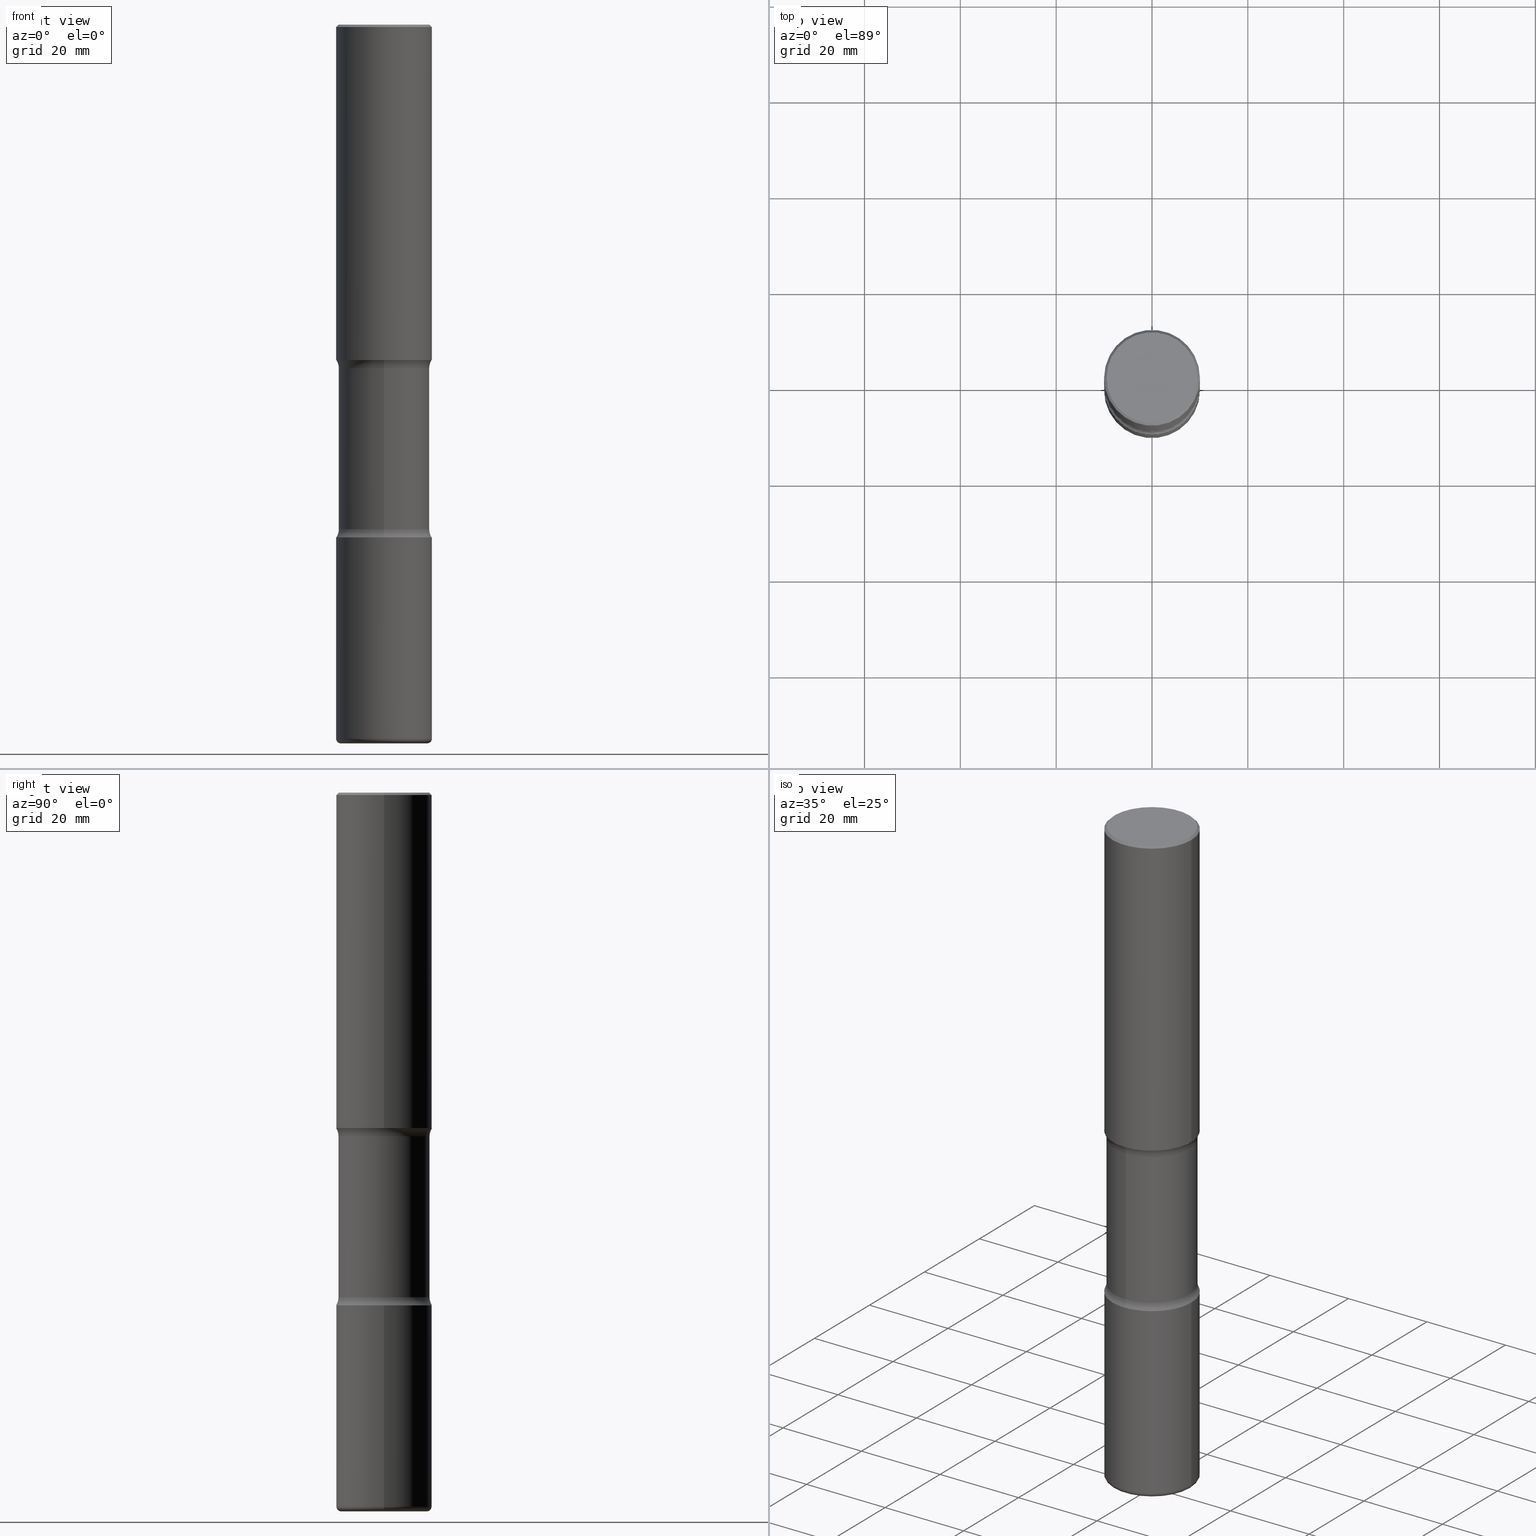
[diagram: canonical four-view strip — front | top / right | iso, engineering-drawing reading convention]
A machine part, canonical four-view strip (front | top / right | iso — engineering-drawing reading convention). The complete STEP part file that produces these views, byte-faithful:
ISO-10303-21;
HEADER;
FILE_DESCRIPTION (( 'STEP AP203' ),
    '1' );
FILE_NAME ('47741.STEP',
    '2024-03-02T08:17:39',
    ( '' ),
    ( '' ),
    'SwSTEP 2.0',
    'SolidWorks 2023',
    '' );
FILE_SCHEMA (( 'CONFIG_CONTROL_DESIGN' ));
ENDSEC;

DATA;
#1 = ADVANCED_FACE ( 'NONE', ( #463 ), #70, .F. ) ;
#2 = DIRECTION ( 'NONE',  ( 1.000000000000000000, -6.860497997771530774E-15, 4.841747577276637457E-29 ) ) ;
#3 = CARTESIAN_POINT ( 'NONE',  ( 0.000000000000000000, 0.000000000000000000, 0.000000000000000000 ) ) ;
#4 = COORDINATED_UNIVERSAL_TIME_OFFSET ( 5, 0, .BEHIND. ) ;
#5 = VECTOR ( 'NONE', #74, 39.37007874015748143 ) ;
#6 = SECURITY_CLASSIFICATION ( '', '', #534 ) ;
#7 = CARTESIAN_POINT ( 'NONE',  ( 0.3937000000000002720, -1.745740669421571411E-14, -4.212599999999998346 ) ) ;
#8 = CARTESIAN_POINT ( 'NONE',  ( 6.829029461346524548E-29, -9.964976017815853586E-15, -2.823256588393414646 ) ) ;
#9 = COORDINATED_UNIVERSAL_TIME_OFFSET ( 5, 0, .BEHIND. ) ;
#10 = DIRECTION ( 'NONE',  ( -2.445468806185136597E-29, 3.491481338843145583E-15, 1.000000000000000000 ) ) ;
#11 = PERSON_AND_ORGANIZATION_ROLE ( 'creator' ) ;
#12 = EDGE_CURVE ( 'NONE', #460, #144, #556, .T. ) ;
#13 = VERTEX_POINT ( 'NONE', #344 ) ;
#14 = CIRCLE ( 'NONE', #49, 0.1249999999999998335 ) ;
#15 = CIRCLE ( 'NONE', #188, 0.3740000000000001656 ) ;
#16 = PERSON_AND_ORGANIZATION ( #286, #339 ) ;
#17 = ADVANCED_FACE ( 'NONE', ( #165 ), #265, .F. ) ;
#18 = EDGE_CURVE ( 'NONE', #371, #462, #119, .T. ) ;
#19 = VERTEX_POINT ( 'NONE', #308 ) ;
#20 = ADVANCED_FACE ( 'NONE', ( #389 ), #22, .T. ) ;
#21 = ORIENTED_EDGE ( 'NONE', *, *, #18, .T. ) ;
#22 = TOROIDAL_SURFACE ( 'NONE', #330, 0.3543000000000003924, 0.03940000000000026814 ) ;
#23 = CC_DESIGN_APPROVAL ( #516, ( #6 ) ) ;
#24 = VERTEX_POINT ( 'NONE', #385 ) ;
#25 = CYLINDRICAL_SURFACE ( 'NONE', #510, 0.3740000000000001656 ) ;
#26 = ORIENTED_EDGE ( 'NONE', *, *, #76, .T. ) ;
#27 = ORIENTED_EDGE ( 'NONE', *, *, #12, .F. ) ;
#28 = EDGE_CURVE ( 'NONE', #371, #24, #262, .T. ) ;
#29 = CIRCLE ( 'NONE', #177, 0.3936999999999999389 ) ;
#30 = AXIS2_PLACEMENT_3D ( 'NONE', #277, #53, #326 ) ;
#31 = ORIENTED_EDGE ( 'NONE', *, *, #370, .T. ) ;
#32 = DIRECTION ( 'NONE',  ( -2.499563752616943430E-29, 3.414014296659653741E-15, 1.000000000000000000 ) ) ;
#33 = APPROVAL ( #131, 'UNSPECIFIED' ) ;
#34 = MANIFOLD_SOLID_BREP ( 'Body-Move/Copy2[4]', #247 ) ;
#35 = DIRECTION ( 'NONE',  ( 6.982962677686266711E-15, 1.000000000000000000, -2.921762560068729411E-15 ) ) ;
#36 = EDGE_CURVE ( 'NONE', #333, #292, #145, .T. ) ;
#37 = DIRECTION ( 'NONE',  ( 2.499563752616943710E-29, -3.414014296659653741E-15, -1.000000000000000000 ) ) ;
#38 = CARTESIAN_POINT ( 'NONE',  ( 6.660667374498401538E-29, -9.735019662066511300E-15, -2.755899999999998240 ) ) ;
#39 = CC_DESIGN_DATE_AND_TIME_ASSIGNMENT ( #360, #98, ( #285 ) ) ;
#40 = CIRCLE ( 'NONE', #274, 0.3740000000000001656 ) ;
#41 = ORIENTED_EDGE ( 'NONE', *, *, #361, .T. ) ;
#42 = CIRCLE ( 'NONE', #426, 0.3543000000000003924 ) ;
#43 = FACE_OUTER_BOUND ( 'NONE', #456, .T. ) ;
#44 = DIRECTION ( 'NONE',  ( 6.982962677686266711E-15, 1.000000000000000000, -2.921762560068729411E-15 ) ) ;
#45 = DIRECTION ( 'NONE',  ( 1.000000000000000000, -6.982962677686265133E-15, 0.000000000000000000 ) ) ;
#46 = CARTESIAN_POINT ( 'NONE',  ( 0.3543000000000003924, -2.309300672324243991E-14, -5.905499999999999972 ) ) ;
#47 = DIRECTION ( 'NONE',  ( 1.000000000000000000, -6.982962677686266711E-15, 4.876212485538976239E-29 ) ) ;
#48 = CARTESIAN_POINT ( 'NONE',  ( 0.000000000000000000, 0.000000000000000000, 0.000000000000000000 ) ) ;
#49 = AXIS2_PLACEMENT_3D ( 'NONE', #96, #273, #140 ) ;
#50 = CC_DESIGN_APPROVAL ( #105, ( #240 ) ) ;
#51 = DIRECTION ( 'NONE',  ( 2.499563752616943710E-29, -3.414014296659653741E-15, -1.000000000000000000 ) ) ;
#52 = COORDINATED_UNIVERSAL_TIME_OFFSET ( 5, 0, .BEHIND. ) ;
#53 = DIRECTION ( 'NONE',  ( -1.000000000000000000, 6.982962677686265922E-15, -4.883557194083112340E-29 ) ) ;
#54 = EDGE_CURVE ( 'NONE', #19, #99, #216, .T. ) ;
#55 = CARTESIAN_POINT ( 'NONE',  ( 2.749192406205151847E-15, 0.3936999999999906685, -2.755899999999999572 ) ) ;
#56 = APPROVAL_ROLE ( '' ) ;
#57 = DIRECTION ( 'NONE',  ( 1.000000000000000000, -6.982962677686265922E-15, 4.876176775795935793E-29 ) ) ;
#58 = EDGE_LOOP ( 'NONE', ( #374, #280, #250, #342 ) ) ;
#59 = CIRCLE ( 'NONE', #126, 0.3937000000000002720 ) ;
#60 = LOCAL_TIME ( 3, 17, 39.00000000000000000, #357 ) ;
#61 = ORIENTED_EDGE ( 'NONE', *, *, #200, .T. ) ;
#62 = EDGE_CURVE ( 'NONE', #157, #24, #226, .T. ) ;
#63 = ADVANCED_FACE ( 'NONE', ( #444 ), #486, .F. ) ;
#64 = ORIENTED_EDGE ( 'NONE', *, *, #174, .T. ) ;
#65 = AXIS2_PLACEMENT_3D ( 'NONE', #130, #10, #45 ) ;
#66 = ORIENTED_EDGE ( 'NONE', *, *, #425, .T. ) ;
#67 = ORIENTED_EDGE ( 'NONE', *, *, #54, .T. ) ;
#68 = ORIENTED_EDGE ( 'NONE', *, *, #442, .F. ) ;
#69 = CC_DESIGN_PERSON_AND_ORGANIZATION_ASSIGNMENT ( #275, #403, ( #285 ) ) ;
#70 = PLANE ( 'NONE',  #111 ) ;
#71 = AXIS2_PLACEMENT_3D ( 'NONE', #258, #224, #87 ) ;
#72 = ORIENTED_EDGE ( 'NONE', *, *, #134, .T. ) ;
#73 = DIRECTION ( 'NONE',  ( 1.000000000000000000, -6.982962677686266711E-15, 4.876176775795935793E-29 ) ) ;
#74 = DIRECTION ( 'NONE',  ( -2.445468806185136877E-29, 3.491481338843145188E-15, 1.000000000000000000 ) ) ;
#75 = DIRECTION ( 'NONE',  ( 6.982962677686265922E-15, 1.000000000000000000, -3.414014296659653741E-15 ) ) ;
#76 = EDGE_CURVE ( 'NONE', #421, #144, #14, .T. ) ;
#77 = FACE_OUTER_BOUND ( 'NONE', #149, .T. ) ;
#78 = DIRECTION ( 'NONE',  ( 1.000000000000000000, -6.982962677686265133E-15, 0.000000000000000000 ) ) ;
#79 = CARTESIAN_POINT ( 'NONE',  ( 1.723044131305019458E-29, -3.883280511437256617E-14, -5.905499999999998195 ) ) ;
#80 =( LENGTH_UNIT ( ) NAMED_UNIT ( * ) SI_UNIT ( $, .METRE. ) );
#81 = CARTESIAN_POINT ( 'NONE',  ( 1.434536456396262699E-28, -2.048137868178777275E-14, -5.866099999999998538 ) ) ;
#82 = CIRCLE ( 'NONE', #509, 0.1249999999999999029 ) ;
#83 =( NAMED_UNIT ( * ) SI_UNIT ( $, .STERADIAN. ) SOLID_ANGLE_UNIT ( ) );
#84 = AXIS2_PLACEMENT_3D ( 'NONE', #375, #150, #73 ) ;
#85 = DIRECTION ( 'NONE',  ( -1.000000000000000000, 6.982962677686266711E-15, 0.000000000000000000 ) ) ;
#86 = CARTESIAN_POINT ( 'NONE',  ( 1.013341980608738414E-28, -1.447825793226129018E-14, -4.145243411606583273 ) ) ;
#87 = DIRECTION ( 'NONE',  ( 6.982962677686266711E-15, 1.000000000000000000, -2.921762560068729411E-15 ) ) ;
#88 = DIRECTION ( 'NONE',  ( 1.000000000000000000, -6.982962677686265133E-15, 0.000000000000000000 ) ) ;
#89 = PERSON_AND_ORGANIZATION_ROLE ( 'classification_officer' ) ;
#90 = FACE_OUTER_BOUND ( 'NONE', #504, .T. ) ;
#91 = PERSON_AND_ORGANIZATION_ROLE ( 'design_supplier' ) ;
#92 = ORIENTED_EDGE ( 'NONE', *, *, #76, .F. ) ;
#93 = CIRCLE ( 'NONE', #414, 0.1249999999999998335 ) ;
#94 = EDGE_CURVE ( 'NONE', #549, #421, #238, .T. ) ;
#95 = DIRECTION ( 'NONE',  ( 1.000000000000000000, -6.982962677686265133E-15, 0.000000000000000000 ) ) ;
#96 = CARTESIAN_POINT ( 'NONE',  ( 3.484498376165515577E-15, 0.4989999999999901736, -2.823256588393415534 ) ) ;
#97 = CARTESIAN_POINT ( 'NONE',  ( 6.660667374498401538E-29, -9.735019662066511300E-15, -2.755899999999998240 ) ) ;
#98 = DATE_TIME_ROLE ( 'creation_date' ) ;
#99 = VERTEX_POINT ( 'NONE', #522 ) ;
#100 = EDGE_CURVE ( 'NONE', #292, #333, #204, .T. ) ;
#101 = DIRECTION ( 'NONE',  ( 6.982962677686265922E-15, 1.000000000000000000, -3.414014296659653741E-15 ) ) ;
#102 = CALENDAR_DATE ( 2024, 2, 3 ) ;
#103 = APPROVAL_PERSON_ORGANIZATION ( #16, #33, #56 ) ;
#104 = ORIENTED_EDGE ( 'NONE', *, *, #36, .T. ) ;
#105 = APPROVAL ( #537, 'UNSPECIFIED' ) ;
#106 = EDGE_LOOP ( 'NONE', ( #547, #368, #415, #496 ) ) ;
#107 = CARTESIAN_POINT ( 'NONE',  ( -2.565826251166408560E-15, -0.3740000000000206493, -5.905499999999997307 ) ) ;
#108 = ORIENTED_EDGE ( 'NONE', *, *, #203, .T. ) ;
#109 = ORIENTED_EDGE ( 'NONE', *, *, #495, .F. ) ;
#110 = ADVANCED_FACE ( 'NONE', ( #480 ), #181, .F. ) ;
#111 = AXIS2_PLACEMENT_3D ( 'NONE', #423, #159, #212 ) ;
#112 = AXIS2_PLACEMENT_3D ( 'NONE', #395, #161, #346 ) ;
#113 = AXIS2_PLACEMENT_3D ( 'NONE', #424, #32, #345 ) ;
#114 = ORIENTED_EDGE ( 'NONE', *, *, #301, .F. ) ;
#115 = EDGE_LOOP ( 'NONE', ( #331, #41, #253, #284 ) ) ;
#116 = VERTEX_POINT ( 'NONE', #235 ) ;
#117 = CARTESIAN_POINT ( 'NONE',  ( 0.000000000000000000, 0.000000000000000000, 0.000000000000000000 ) ) ;
#118 = CARTESIAN_POINT ( 'NONE',  ( 2.611628041454766160E-15, 0.3739999999999856772, -4.145243411606584161 ) ) ;
#119 = CIRCLE ( 'NONE', #196, 0.3937000000000002164 ) ;
#120 = DIRECTION ( 'NONE',  ( 1.000000000000000000, -6.982962677686266711E-15, 4.883557194083112340E-29 ) ) ;
#121 = AXIS2_PLACEMENT_3D ( 'NONE', #560, #394, #470 ) ;
#122 = FACE_OUTER_BOUND ( 'NONE', #202, .T. ) ;
#123 = PLANE ( 'NONE',  #112 ) ;
#124 = CARTESIAN_POINT ( 'NONE',  ( -0.3937000000000004385, -1.768397193110025560E-14, -5.866099999999998538 ) ) ;
#125 = LINE ( 'NONE', #468, #254 ) ;
#126 = AXIS2_PLACEMENT_3D ( 'NONE', #261, #559, #343 ) ;
#127 = DIRECTION ( 'NONE',  ( 2.499563752616943710E-29, -3.414014296659653741E-15, -1.000000000000000000 ) ) ;
#128 = TOROIDAL_SURFACE ( 'NONE', #548, 0.4990000000000002212, 0.1249999999999998751 ) ;
#129 = CARTESIAN_POINT ( 'NONE',  ( 1.013341980608738414E-28, -1.447825793226129018E-14, -4.145243411606583273 ) ) ;
#130 = CARTESIAN_POINT ( 'NONE',  ( 6.739467482965614869E-29, -9.622173421717819657E-15, -2.755899999999998240 ) ) ;
#131 = APPROVAL_STATUS ( 'not_yet_approved' ) ;
#132 = DIRECTION ( 'NONE',  ( 1.000000000000000000, -6.982962677686265133E-15, 0.000000000000000000 ) ) ;
#133 = DIRECTION ( 'NONE',  ( 1.000000000000000000, 0.000000000000000000, 0.000000000000000000 ) ) ;
#134 = EDGE_CURVE ( 'NONE', #252, #201, #372, .T. ) ;
#135 = CARTESIAN_POINT ( 'NONE',  ( -2.087702828670439639E-46, 2.980686340760894400E-32, 8.537024980200822558E-18 ) ) ;
#136 = COORDINATED_UNIVERSAL_TIME_OFFSET ( 5, 0, .BEHIND. ) ;
#137 = CC_DESIGN_PERSON_AND_ORGANIZATION_ASSIGNMENT ( #449, #11, ( #240 ) ) ;
#138 = CLOSED_SHELL ( 'NONE', ( #488, #20, #420, #377, #158, #1 ) ) ;
#139 = TOROIDAL_SURFACE ( 'NONE', #447, 0.3543000000000003924, 0.03940000000000026814 ) ;
#140 = DIRECTION ( 'NONE',  ( -6.982962677686268288E-15, -1.000000000000000000, 0.000000000000000000 ) ) ;
#141 = CALENDAR_DATE ( 2024, 2, 3 ) ;
#142 = ORIENTED_EDGE ( 'NONE', *, *, #94, .F. ) ;
#143 = CARTESIAN_POINT ( 'NONE',  ( 1.444171603492632270E-28, -2.061894304653819197E-14, -5.905499999999999972 ) ) ;
#144 = VERTEX_POINT ( 'NONE', #55 ) ;
#145 = CIRCLE ( 'NONE', #531, 0.3937000000000002720 ) ;
#146 = EDGE_LOOP ( 'NONE', ( #482, #72, #299, #457 ) ) ;
#147 = VERTEX_POINT ( 'NONE', #402 ) ;
#148 = APPLICATION_CONTEXT ( 'configuration controlled 3d designs of mechanical parts and assemblies' ) ;
#149 = EDGE_LOOP ( 'NONE', ( #336, #66, #187, #538 ) ) ;
#150 = DIRECTION ( 'NONE',  ( -2.445468806185136597E-29, 3.491481338843145583E-15, 1.000000000000000000 ) ) ;
#151 = EDGE_LOOP ( 'NONE', ( #108, #539, #335, #290 ) ) ;
#152 = DIMENSIONAL_EXPONENTS ( 1.000000000000000000, 0.000000000000000000, 0.000000000000000000, 0.000000000000000000, 0.000000000000000000, 0.000000000000000000, 0.000000000000000000 ) ;
#153 = ORIENTED_EDGE ( 'NONE', *, *, #526, .F. ) ;
#154 = CC_DESIGN_PERSON_AND_ORGANIZATION_ASSIGNMENT ( #364, #91, ( #240 ) ) ;
#155 = AXIS2_PLACEMENT_3D ( 'NONE', #282, #179, #101 ) ;
#156 = LOCAL_TIME ( 3, 17, 39.00000000000000000, #136 ) ;
#157 = VERTEX_POINT ( 'NONE', #7 ) ;
#158 = ADVANCED_FACE ( 'NONE', ( #90 ), #184, .T. ) ;
#159 = DIRECTION ( 'NONE',  ( 2.438088387897960049E-29, -3.491481338843145188E-15, -1.000000000000000000 ) ) ;
#160 = CARTESIAN_POINT ( 'NONE',  ( -2.700978061722587749E-15, -0.3937000000000100419, -2.755899999999997352 ) ) ;
#161 = DIRECTION ( 'NONE',  ( 2.438088387897960049E-29, -3.491481338843145188E-15, -1.000000000000000000 ) ) ;
#162 = DIRECTION ( 'NONE',  ( -2.445468806185136597E-29, 3.491481338843145583E-15, 1.000000000000000000 ) ) ;
#163 = DIRECTION ( 'NONE',  ( 1.000000000000000000, -6.982962677686280910E-15, 0.000000000000000000 ) ) ;
#164 = DIRECTION ( 'NONE',  ( 2.499563752616943710E-29, -3.414014296659653741E-15, -1.000000000000000000 ) ) ;
#165 = FACE_OUTER_BOUND ( 'NONE', #464, .T. ) ;
#166 = CIRCLE ( 'NONE', #483, 0.3736999999999999211 ) ;
#167 = CARTESIAN_POINT ( 'NONE',  ( 1.434536456396262699E-28, -2.048137868178777275E-14, -5.866099999999998538 ) ) ;
#168 = APPROVAL_PERSON_ORGANIZATION ( #189, #105, #481 ) ;
#169 = DIRECTION ( 'NONE',  ( 6.982962677686265922E-15, 1.000000000000000000, -3.414014296659653741E-15 ) ) ;
#170 = DIRECTION ( 'NONE',  ( -2.445468806185136877E-29, 3.491481338843145188E-15, 1.000000000000000000 ) ) ;
#171 = CARTESIAN_POINT ( 'NONE',  ( 0.3937000000000004385, -2.323057108799285912E-14, -5.866099999999998538 ) ) ;
#172 = DIRECTION ( 'NONE',  ( -2.445468806185136597E-29, 3.491481338843145583E-15, 1.000000000000000000 ) ) ;
#173 = CARTESIAN_POINT ( 'NONE',  ( -2.633402156444500718E-15, -0.3740000000000146541, -4.145243411606582384 ) ) ;
#174 = EDGE_CURVE ( 'NONE', #147, #298, #354, .T. ) ;
#175 = DIRECTION ( 'NONE',  ( 1.000000000000000000, -6.982962677686266711E-15, 4.883557194083112340E-29 ) ) ;
#176 = DIRECTION ( 'NONE',  ( 1.000000000000000000, -6.982962677686266711E-15, 4.876176775795935793E-29 ) ) ;
#177 = AXIS2_PLACEMENT_3D ( 'NONE', #218, #172, #517 ) ;
#178 = VECTOR ( 'NONE', #334, 39.37007874015748143 ) ;
#179 = DIRECTION ( 'NONE',  ( 2.499563752616943430E-29, -3.414014296659653741E-15, -1.000000000000000000 ) ) ;
#180 = CALENDAR_DATE ( 2024, 2, 3 ) ;
#181 = PLANE ( 'NONE',  #540 ) ;
#182 = APPROVAL_STATUS ( 'not_yet_approved' ) ;
#183 = LINE ( 'NONE', #107, #178 ) ;
#184 = CYLINDRICAL_SURFACE ( 'NONE', #347, 0.3937000000000002164 ) ;
#185 = DATE_AND_TIME ( #487, #60 ) ;
#186 = AXIS2_PLACEMENT_3D ( 'NONE', #319, #327, #525 ) ;
#187 = ORIENTED_EDGE ( 'NONE', *, *, #400, .F. ) ;
#188 = AXIS2_PLACEMENT_3D ( 'NONE', #86, #507, #260 ) ;
#189 = PERSON_AND_ORGANIZATION ( #286, #339 ) ;
#190 = EDGE_CURVE ( 'NONE', #292, #544, #82, .T. ) ;
#191 = DIRECTION ( 'NONE',  ( 2.438088387897960049E-29, -3.491481338843145188E-15, -1.000000000000000000 ) ) ;
#192 = ORIENTED_EDGE ( 'NONE', *, *, #94, .T. ) ;
#193 = ADVANCED_FACE ( 'NONE', ( #233 ), #398, .T. ) ;
#194 = ORIENTED_EDGE ( 'NONE', *, *, #12, .T. ) ;
#195 = ORIENTED_EDGE ( 'NONE', *, *, #445, .T. ) ;
#196 = AXIS2_PLACEMENT_3D ( 'NONE', #208, #259, #78 ) ;
#197 = CIRCLE ( 'NONE', #541, 0.03940000000000026814 ) ;
#198 = ORIENTED_EDGE ( 'NONE', *, *, #501, .T. ) ;
#199 = CYLINDRICAL_SURFACE ( 'NONE', #84, 0.3937000000000001054 ) ;
#200 = EDGE_CURVE ( 'NONE', #116, #19, #323, .T. ) ;
#201 = VERTEX_POINT ( 'NONE', #355 ) ;
#202 = EDGE_LOOP ( 'NONE', ( #142, #494, #194, #92 ) ) ;
#203 = EDGE_CURVE ( 'NONE', #462, #371, #296, .T. ) ;
#204 = CIRCLE ( 'NONE', #186, 0.3937000000000002720 ) ;
#205 = CC_DESIGN_SECURITY_CLASSIFICATION ( #6, ( #240 ) ) ;
#206 = ORIENTED_EDGE ( 'NONE', *, *, #313, .T. ) ;
#207 = LENGTH_MEASURE_WITH_UNIT ( LENGTH_MEASURE( 0.02539999999999999897 ), #80 );
#208 = CARTESIAN_POINT ( 'NONE',  ( 1.434536456396262699E-28, -2.048137868178777275E-14, -5.866099999999998538 ) ) ;
#209 = DIRECTION ( 'NONE',  ( -2.445468806185136597E-29, 3.491481338843145583E-15, 1.000000000000000000 ) ) ;
#210 = DIRECTION ( 'NONE',  ( -2.445468806185136597E-29, 3.491481338843145583E-15, 1.000000000000000000 ) ) ;
#211 = DIRECTION ( 'NONE',  ( 6.982962677686265922E-15, 1.000000000000000000, -2.775563112689113540E-15 ) ) ;
#212 = DIRECTION ( 'NONE',  ( -1.000000000000000000, 6.982962677686265922E-15, -4.876176775795935793E-29 ) ) ;
#213 = LINE ( 'NONE', #435, #5 ) ;
#214 = MANIFOLD_SOLID_BREP ( 'Body-Move/Copy2[1]', #138 ) ;
#215 = AXIS2_PLACEMENT_3D ( 'NONE', #97, #418, #211 ) ;
#216 = LINE ( 'NONE', #438, #434 ) ;
#217 = CARTESIAN_POINT ( 'NONE',  ( -0.3543000000000003924, -1.796392576898973579E-14, -5.866099999999998538 ) ) ;
#218 = CARTESIAN_POINT ( 'NONE',  ( 4.890937612370298557E-31, -6.982962677686327354E-17, -0.02000000000000010103 ) ) ;
#219 = DIRECTION ( 'NONE',  ( 6.982962677686265922E-15, 1.000000000000000000, -2.775563112689114723E-15 ) ) ;
#220 = CARTESIAN_POINT ( 'NONE',  ( 0.3543000000000003924, -2.295544235849201754E-14, -5.866099999999998538 ) ) ;
#221 = DIRECTION ( 'NONE',  ( 6.982962677686265922E-15, 1.000000000000000000, -2.775563112689113540E-15 ) ) ;
#222 = DIRECTION ( 'NONE',  ( 1.000000000000000000, -6.860497997771530774E-15, 4.841747577276637457E-29 ) ) ;
#223 = EDGE_CURVE ( 'NONE', #421, #549, #40, .T. ) ;
#224 = DIRECTION ( 'NONE',  ( 2.499563752616943710E-29, -3.414014296659653741E-15, -1.000000000000000000 ) ) ;
#225 = CARTESIAN_POINT ( 'NONE',  ( 6.829029461346524548E-29, -9.964976017815853586E-15, -2.823256588393414646 ) ) ;
#226 = CIRCLE ( 'NONE', #306, 0.3937000000000002720 ) ;
#227 = APPROVAL_DATE_TIME ( #485, #33 ) ;
#228 = AXIS2_PLACEMENT_3D ( 'NONE', #477, #553, #465 ) ;
#229 = CC_DESIGN_PERSON_AND_ORGANIZATION_ASSIGNMENT ( #529, #89, ( #6 ) ) ;
#230 = DIRECTION ( 'NONE',  ( 1.000000000000000000, -6.982962677686269077E-15, 0.000000000000000000 ) ) ;
#231 = PERSON_AND_ORGANIZATION ( #286, #339 ) ;
#232 = MANIFOLD_SOLID_BREP ( 'Body-Move/Copy2[2]', #454 ) ;
#233 = FACE_OUTER_BOUND ( 'NONE', #542, .T. ) ;
#234 = CALENDAR_DATE ( 2024, 2, 3 ) ;
#235 = CARTESIAN_POINT ( 'NONE',  ( 0.3736999999999999211, -2.667287895133367964E-15, 8.537024980219274507E-18 ) ) ;
#236 = SHAPE_DEFINITION_REPRESENTATION ( #289, #382 ) ;
#237 = ADVANCED_FACE ( 'NONE', ( #77 ), #270, .T. ) ;
#238 = CIRCLE ( 'NONE', #392, 0.3740000000000001656 ) ;
#239 = EDGE_LOOP ( 'NONE', ( #109, #358 ) ) ;
#240 = PRODUCT_DEFINITION_FORMATION_WITH_SPECIFIED_SOURCE ( 'ANY', '', #300, .NOT_KNOWN. ) ;
#241 = PRODUCT_RELATED_PRODUCT_CATEGORY ( 'detail', '', ( #300 ) ) ;
#242 = ORIENTED_EDGE ( 'NONE', *, *, #294, .F. ) ;
#243 = DIRECTION ( 'NONE',  ( 2.499563752616943710E-29, -3.414014296659653741E-15, -1.000000000000000000 ) ) ;
#244 = ADVANCED_FACE ( 'NONE', ( #429 ), #436, .T. ) ;
#245 = APPLICATION_CONTEXT ( 'configuration controlled 3d designs of mechanical parts and assemblies' ) ;
#246 = ORIENTED_EDGE ( 'NONE', *, *, #340, .T. ) ;
#247 = CLOSED_SHELL ( 'NONE', ( #237, #489, #536, #473, #63, #497, #17, #428 ) ) ;
#248 = TOROIDAL_SURFACE ( 'NONE', #532, 0.4990000000000000546, 0.1249999999999998612 ) ;
#249 = ADVANCED_FACE ( 'NONE', ( #441 ), #123, .F. ) ;
#250 = ORIENTED_EDGE ( 'NONE', *, *, #203, .F. ) ;
#251 = ORIENTED_EDGE ( 'NONE', *, *, #361, .F. ) ;
#252 = VERTEX_POINT ( 'NONE', #432 ) ;
#253 = ORIENTED_EDGE ( 'NONE', *, *, #353, .T. ) ;
#254 = VECTOR ( 'NONE', #170, 39.37007874015748143 ) ;
#255 = CIRCLE ( 'NONE', #437, 0.3936999999999999389 ) ;
#256 = ORIENTED_EDGE ( 'NONE', *, *, #62, .T. ) ;
#257 = CARTESIAN_POINT ( 'NONE',  ( 4.890937612370298557E-31, -6.982962677686327354E-17, -0.02000000000000010103 ) ) ;
#258 = CARTESIAN_POINT ( 'NONE',  ( 1.453329336974072664E-28, -2.048779909082575425E-14, -5.905499999999998195 ) ) ;
#259 = DIRECTION ( 'NONE',  ( -2.445468806185136597E-29, 3.491481338843145583E-15, 1.000000000000000000 ) ) ;
#260 = DIRECTION ( 'NONE',  ( 6.982962677686266711E-15, 1.000000000000000000, -2.921762560068729411E-15 ) ) ;
#261 = CARTESIAN_POINT ( 'NONE',  ( 1.030178189293550378E-28, -1.470821428801063089E-14, -4.212599999999998346 ) ) ;
#262 = LINE ( 'NONE', #469, #466 ) ;
#263 =( NAMED_UNIT ( * ) PLANE_ANGLE_UNIT ( ) SI_UNIT ( $, .RADIAN. ) );
#264 = LINE ( 'NONE', #391, #312 ) ;
#265 = TOROIDAL_SURFACE ( 'NONE', #408, 0.4990000000000002212, 0.1249999999999998751 ) ;
#266 = AXIS2_PLACEMENT_3D ( 'NONE', #475, #352, #85 ) ;
#267 = CARTESIAN_POINT ( 'NONE',  ( 1.030178189293550378E-28, -1.470821428801063089E-14, -4.212599999999998346 ) ) ;
#268 = APPLICATION_PROTOCOL_DEFINITION ( 'international standard', 'config_control_design', 1994, #148 ) ;
#269 = DIRECTION ( 'NONE',  ( 2.499563752616943710E-29, -3.414014296659653741E-15, -1.000000000000000000 ) ) ;
#270 = CYLINDRICAL_SURFACE ( 'NONE', #71, 0.3740000000000001656 ) ;
#271 = DIRECTION ( 'NONE',  ( 1.000000000000000000, -6.982962677686266711E-15, 4.876176775795935793E-29 ) ) ;
#272 = EDGE_CURVE ( 'NONE', #549, #460, #93, .T. ) ;
#273 = DIRECTION ( 'NONE',  ( -1.000000000000000000, 6.982962677686265922E-15, -4.883557194083112340E-29 ) ) ;
#274 = AXIS2_PLACEMENT_3D ( 'NONE', #225, #397, #35 ) ;
#275 = PERSON_AND_ORGANIZATION ( #286, #339 ) ;
#276 = LOCAL_TIME ( 3, 17, 39.00000000000000000, #4 ) ;
#277 = CARTESIAN_POINT ( 'NONE',  ( 3.484498376165549498E-15, 0.4989999999999857327, -4.145243411606585049 ) ) ;
#278 = CARTESIAN_POINT ( 'NONE',  ( 1.434536456396262699E-28, -2.048137868178777275E-14, -5.866099999999998538 ) ) ;
#279 = DATE_AND_TIME ( #141, #381 ) ;
#280 = ORIENTED_EDGE ( 'NONE', *, *, #442, .T. ) ;
#281 = EDGE_CURVE ( 'NONE', #421, #325, #264, .T. ) ;
#282 = CARTESIAN_POINT ( 'NONE',  ( 6.739467482965614869E-29, -9.622173421717819657E-15, -2.755899999999998240 ) ) ;
#283 = APPROVAL_DATE_TIME ( #405, #516 ) ;
#284 = ORIENTED_EDGE ( 'NONE', *, *, #54, .F. ) ;
#285 = PRODUCT_DEFINITION ( 'UNKNOWN', '', #240, #387 ) ;
#286 = PERSON ( 'UNSPECIFIED', 'UNSPECIFIED', 'UNSPECIFIED', ('UNSPECIFIED'), ('UNSPECIFIED'), ('UNSPECIFIED') ) ;
#287 = AXIS2_PLACEMENT_3D ( 'NONE', #38, #164, #221 ) ;
#288 = DIRECTION ( 'NONE',  ( -1.000000000000000000, 6.982962677686265922E-15, -4.876176775795935793E-29 ) ) ;
#289 = PRODUCT_DEFINITION_SHAPE ( 'NONE', 'NONE',  #285 ) ;
#290 = ORIENTED_EDGE ( 'NONE', *, *, #370, .F. ) ;
#291 = FACE_OUTER_BOUND ( 'NONE', #378, .T. ) ;
#292 = VERTEX_POINT ( 'NONE', #471 ) ;
#293 = DIRECTION ( 'NONE',  ( 6.982962677686266711E-15, 1.000000000000000000, -2.921762560068729411E-15 ) ) ;
#294 = EDGE_CURVE ( 'NONE', #19, #116, #166, .T. ) ;
#295 = ORIENTED_EDGE ( 'NONE', *, *, #272, .F. ) ;
#296 = CIRCLE ( 'NONE', #474, 0.3937000000000002164 ) ;
#297 = CIRCLE ( 'NONE', #30, 0.1249999999999999029 ) ;
#298 = VERTEX_POINT ( 'NONE', #46 ) ;
#299 = ORIENTED_EDGE ( 'NONE', *, *, #301, .T. ) ;
#300 = PRODUCT ( '47741', '47741', '', ( #320 ) ) ;
#301 = EDGE_CURVE ( 'NONE', #201, #13, #310, .T. ) ;
#302 = EDGE_LOOP ( 'NONE', ( #413, #61 ) ) ;
#303 = ORIENTED_EDGE ( 'NONE', *, *, #174, .F. ) ;
#304 = FACE_OUTER_BOUND ( 'NONE', #337, .T. ) ;
#305 = DIRECTION ( 'NONE',  ( 6.860497997771531562E-15, 1.000000000000000000, 0.000000000000000000 ) ) ;
#306 = AXIS2_PLACEMENT_3D ( 'NONE', #448, #363, #230 ) ;
#307 = CARTESIAN_POINT ( 'NONE',  ( 4.890937612370298557E-31, -6.982962677686327354E-17, -0.02000000000000010103 ) ) ;
#308 = CARTESIAN_POINT ( 'NONE',  ( -0.3736999999999999211, 2.644447966039788269E-15, 8.537024980182450727E-18 ) ) ;
#309 = PLANE ( 'NONE',  #113 ) ;
#310 = LINE ( 'NONE', #478, #338 ) ;
#311 = DIRECTION ( 'NONE',  ( -2.445468806185136877E-29, 3.491481338843145188E-15, 1.000000000000000000 ) ) ;
#312 = VECTOR ( 'NONE', #443, 39.37007874015748143 ) ;
#313 = EDGE_CURVE ( 'NONE', #24, #157, #59, .T. ) ;
#314 = CARTESIAN_POINT ( 'NONE',  ( 2.611628041454733028E-15, 0.3739999999999901736, -2.823256588393415534 ) ) ;
#315 = CIRCLE ( 'NONE', #393, 0.3740000000000001656 ) ;
#316 = FACE_OUTER_BOUND ( 'NONE', #151, .T. ) ;
#317 = LINE ( 'NONE', #388, #490 ) ;
#318 = DIRECTION ( 'NONE',  ( -2.445468806185136597E-29, 3.491481338843145583E-15, 1.000000000000000000 ) ) ;
#319 = CARTESIAN_POINT ( 'NONE',  ( 1.030178189293550378E-28, -1.470821428801063089E-14, -4.212599999999998346 ) ) ;
#320 = MECHANICAL_CONTEXT ( 'NONE', #148, 'mechanical' ) ;
#321 = ORIENTED_EDGE ( 'NONE', *, *, #223, .F. ) ;
#322 = DIRECTION ( 'NONE',  ( -2.438088387897960049E-29, 3.491481338843145188E-15, 1.000000000000000000 ) ) ;
#323 = CIRCLE ( 'NONE', #380, 0.3736999999999999211 ) ;
#324 = DIRECTION ( 'NONE',  ( 0.000000000000000000, 0.000000000000000000, 1.000000000000000000 ) ) ;
#325 = VERTEX_POINT ( 'NONE', #118 ) ;
#326 = DIRECTION ( 'NONE',  ( -6.982962677686264344E-15, -1.000000000000000000, 0.000000000000000000 ) ) ;
#327 = DIRECTION ( 'NONE',  ( 2.499563752616943710E-29, -3.414014296659653741E-15, -1.000000000000000000 ) ) ;
#328 = DATE_TIME_ROLE ( 'classification_date' ) ;
#329 = ORIENTED_EDGE ( 'NONE', *, *, #28, .F. ) ;
#330 = AXIS2_PLACEMENT_3D ( 'NONE', #167, #162, #120 ) ;
#331 = ORIENTED_EDGE ( 'NONE', *, *, #200, .F. ) ;
#332 = CC_DESIGN_PERSON_AND_ORGANIZATION_ASSIGNMENT ( #367, #451, ( #300 ) ) ;
#333 = VERTEX_POINT ( 'NONE', #506 ) ;
#334 = DIRECTION ( 'NONE',  ( 2.499563752616943710E-29, -3.414014296659653741E-15, -1.000000000000000000 ) ) ;
#335 = ORIENTED_EDGE ( 'NONE', *, *, #62, .F. ) ;
#336 = ORIENTED_EDGE ( 'NONE', *, *, #223, .T. ) ;
#337 = EDGE_LOOP ( 'NONE', ( #104, #546 ) ) ;
#338 = VECTOR ( 'NONE', #311, 39.37007874015748143 ) ;
#339 = ORGANIZATION ( 'UNSPECIFIED', 'UNSPECIFIED', '' ) ;
#340 = EDGE_CURVE ( 'NONE', #144, #460, #519, .T. ) ;
#341 = ORIENTED_EDGE ( 'NONE', *, *, #411, .F. ) ;
#342 = ORIENTED_EDGE ( 'NONE', *, *, #501, .F. ) ;
#343 = DIRECTION ( 'NONE',  ( 1.000000000000000000, -6.982962677686269077E-15, 0.000000000000000000 ) ) ;
#344 = CARTESIAN_POINT ( 'NONE',  ( 0.3936999999999999389, -2.770807688499514945E-15, -0.02000000000000010103 ) ) ;
#345 = DIRECTION ( 'NONE',  ( -6.982962677686265922E-15, -1.000000000000000000, 3.414014296659653741E-15 ) ) ;
#346 = DIRECTION ( 'NONE',  ( -1.000000000000000000, 6.982962677686265922E-15, -4.876176775795935793E-29 ) ) ;
#347 = AXIS2_PLACEMENT_3D ( 'NONE', #356, #318, #271 ) ;
#348 = AXIS2_PLACEMENT_3D ( 'NONE', #117, #551, #515 ) ;
#349 = CYLINDRICAL_SURFACE ( 'NONE', #348, 0.3937000000000002164 ) ;
#350 = DIRECTION ( 'NONE',  ( 2.499563752616943710E-29, -3.414014296659653741E-15, -1.000000000000000000 ) ) ;
#351 = CARTESIAN_POINT ( 'NONE',  ( -2.087702828670439639E-46, 2.980686340760894400E-32, 8.537024980200822558E-18 ) ) ;
#352 = DIRECTION ( 'NONE',  ( 2.445468806185136597E-29, -3.491481338843145583E-15, -1.000000000000000000 ) ) ;
#353 = EDGE_CURVE ( 'NONE', #13, #99, #29, .T. ) ;
#354 = CIRCLE ( 'NONE', #446, 0.3543000000000003924 ) ;
#355 = CARTESIAN_POINT ( 'NONE',  ( 0.3937000000000002164, -1.237136582792290287E-14, -2.755899999999998240 ) ) ;
#356 = CARTESIAN_POINT ( 'NONE',  ( 0.000000000000000000, 0.000000000000000000, 0.000000000000000000 ) ) ;
#357 = COORDINATED_UNIVERSAL_TIME_OFFSET ( 5, 0, .BEHIND. ) ;
#358 = ORIENTED_EDGE ( 'NONE', *, *, #134, .F. ) ;
#359 = CARTESIAN_POINT ( 'NONE',  ( -3.423388500887893787E-15, -0.4990000000000146541, -4.145243411606581496 ) ) ;
#360 = DATE_AND_TIME ( #180, #156 ) ;
#361 = EDGE_CURVE ( 'NONE', #116, #13, #317, .T. ) ;
#362 = ORIENTED_EDGE ( 'NONE', *, *, #495, .T. ) ;
#363 = DIRECTION ( 'NONE',  ( -2.445468806185136597E-29, 3.491481338843145583E-15, 1.000000000000000000 ) ) ;
#364 = PERSON_AND_ORGANIZATION ( #286, #339 ) ;
#365 = AXIS2_PLACEMENT_3D ( 'NONE', #217, #386, #440 ) ;
#366 = EDGE_CURVE ( 'NONE', #252, #99, #125, .T. ) ;
#367 = PERSON_AND_ORGANIZATION ( #286, #339 ) ;
#368 = ORIENTED_EDGE ( 'NONE', *, *, #190, .T. ) ;
#369 = EDGE_LOOP ( 'NONE', ( #68, #64, #198, #373 ) ) ;
#370 = EDGE_CURVE ( 'NONE', #462, #157, #213, .T. ) ;
#371 = VERTEX_POINT ( 'NONE', #124 ) ;
#372 = CIRCLE ( 'NONE', #65, 0.3937000000000002164 ) ;
#373 = ORIENTED_EDGE ( 'NONE', *, *, #18, .F. ) ;
#374 = ORIENTED_EDGE ( 'NONE', *, *, #411, .T. ) ;
#375 = CARTESIAN_POINT ( 'NONE',  ( 0.000000000000000000, 0.000000000000000000, 0.000000000000000000 ) ) ;
#376 = ORIENTED_EDGE ( 'NONE', *, *, #400, .T. ) ;
#377 = ADVANCED_FACE ( 'NONE', ( #554 ), #139, .T. ) ;
#378 = EDGE_LOOP ( 'NONE', ( #530, #192, #502, #153 ) ) ;
#379 = ADVANCED_FACE ( 'NONE', ( #43 ), #521, .T. ) ;
#380 = AXIS2_PLACEMENT_3D ( 'NONE', #135, #484, #47 ) ;
#381 = LOCAL_TIME ( 3, 17, 39.00000000000000000, #52 ) ;
#382 = ADVANCED_BREP_SHAPE_REPRESENTATION ( '47741', ( #214, #232, #34, #476 ), #500 ) ;
#383 = PLANE ( 'NONE',  #461 ) ;
#384 = EDGE_LOOP ( 'NONE', ( #295, #321, #26, #246 ) ) ;
#385 = CARTESIAN_POINT ( 'NONE',  ( -0.3937000000000002720, -1.479738973421168625E-14, -4.212599999999998346 ) ) ;
#386 = DIRECTION ( 'NONE',  ( 7.105427357601001859E-15, 1.000000000000000000, -3.491481338843145583E-15 ) ) ;
#387 = DESIGN_CONTEXT ( 'detailed design', #245, 'design' ) ;
#388 = CARTESIAN_POINT ( 'NONE',  ( 0.3936999999999999389, -2.770807688499514945E-15, -0.02000000000000010103 ) ) ;
#389 = FACE_OUTER_BOUND ( 'NONE', #58, .T. ) ;
#390 = FACE_OUTER_BOUND ( 'NONE', #106, .T. ) ;
#391 = CARTESIAN_POINT ( 'NONE',  ( 2.611628041454809941E-15, 0.3739999999999796820, -5.905499999999999972 ) ) ;
#392 = AXIS2_PLACEMENT_3D ( 'NONE', #8, #51, #533 ) ;
#393 = AXIS2_PLACEMENT_3D ( 'NONE', #129, #269, #44 ) ;
#394 = DIRECTION ( 'NONE',  ( 2.499563752616943710E-29, -3.414014296659653741E-15, -1.000000000000000000 ) ) ;
#395 = CARTESIAN_POINT ( 'NONE',  ( 2.609533152651356620E-15, 0.3736999999999999211, -1.300498063835582814E-15 ) ) ;
#396 = DIRECTION ( 'NONE',  ( -6.982962677686266711E-15, -1.000000000000000000, 3.491481338843145583E-15 ) ) ;
#397 = DIRECTION ( 'NONE',  ( 2.499563752616943710E-29, -3.414014296659653741E-15, -1.000000000000000000 ) ) ;
#398 = CYLINDRICAL_SURFACE ( 'NONE', #459, 0.3937000000000001054 ) ;
#399 = APPLICATION_PROTOCOL_DEFINITION ( 'international standard', 'config_control_design', 1994, #245 ) ;
#400 = EDGE_CURVE ( 'NONE', #325, #544, #315, .T. ) ;
#401 = TOROIDAL_SURFACE ( 'NONE', #121, 0.4990000000000000546, 0.1249999999999998612 ) ;
#402 = CARTESIAN_POINT ( 'NONE',  ( -0.3543000000000003924, -1.789273103242020530E-14, -5.905499999999999972 ) ) ;
#403 = PERSON_AND_ORGANIZATION_ROLE ( 'creator' ) ;
#404 = DIRECTION ( 'NONE',  ( -2.445468806185136597E-29, 3.491481338843145583E-15, 1.000000000000000000 ) ) ;
#405 = DATE_AND_TIME ( #102, #276 ) ;
#406 = DIRECTION ( 'NONE',  ( -2.445468806185136597E-29, 3.491481338843145583E-15, 1.000000000000000000 ) ) ;
#407 = ORIENTED_EDGE ( 'NONE', *, *, #340, .F. ) ;
#408 = AXIS2_PLACEMENT_3D ( 'NONE', #503, #512, #75 ) ;
#409 = LOCAL_TIME ( 3, 17, 39.00000000000000000, #9 ) ;
#410 = ORIENTED_EDGE ( 'NONE', *, *, #36, .F. ) ;
#411 = EDGE_CURVE ( 'NONE', #298, #147, #42, .T. ) ;
#412 = EDGE_LOOP ( 'NONE', ( #407, #27 ) ) ;
#413 = ORIENTED_EDGE ( 'NONE', *, *, #294, .T. ) ;
#414 = AXIS2_PLACEMENT_3D ( 'NONE', #511, #2, #305 ) ;
#415 = ORIENTED_EDGE ( 'NONE', *, *, #526, .T. ) ;
#416 = CC_DESIGN_APPROVAL ( #33, ( #285 ) ) ;
#417 = EDGE_CURVE ( 'NONE', #333, #325, #297, .T. ) ;
#418 = DIRECTION ( 'NONE',  ( 2.499563752616943710E-29, -3.414014296659653741E-15, -1.000000000000000000 ) ) ;
#419 = ORIENTED_EDGE ( 'NONE', *, *, #190, .F. ) ;
#420 = ADVANCED_FACE ( 'NONE', ( #422 ), #383, .T. ) ;
#421 = VERTEX_POINT ( 'NONE', #314 ) ;
#422 = FACE_OUTER_BOUND ( 'NONE', #492, .T. ) ;
#423 = CARTESIAN_POINT ( 'NONE',  ( 1.030178189293550378E-28, -1.470821428801063089E-14, -4.212599999999998346 ) ) ;
#424 = CARTESIAN_POINT ( 'NONE',  ( 1.030178189293550378E-28, -1.470821428801063089E-14, -4.212599999999998346 ) ) ;
#425 = EDGE_CURVE ( 'NONE', #549, #544, #183, .T. ) ;
#426 = AXIS2_PLACEMENT_3D ( 'NONE', #143, #524, #95 ) ;
#427 = FACE_OUTER_BOUND ( 'NONE', #384, .T. ) ;
#428 = ADVANCED_FACE ( 'NONE', ( #291 ), #25, .T. ) ;
#429 = FACE_OUTER_BOUND ( 'NONE', #115, .T. ) ;
#430 = DIRECTION ( 'NONE',  ( -2.445468806185136877E-29, 3.491481338843145188E-15, 1.000000000000000000 ) ) ;
#431 =( CONVERSION_BASED_UNIT ( 'INCH', #207 ) LENGTH_UNIT ( ) NAMED_UNIT ( #152 ) );
#432 = CARTESIAN_POINT ( 'NONE',  ( -0.3937000000000002720, -2.048594773559823141E-15, -2.755899999999998240 ) ) ;
#433 = DIRECTION ( 'NONE',  ( 6.982962677686265922E-15, 1.000000000000000000, -3.414014296659653741E-15 ) ) ;
#434 = VECTOR ( 'NONE', #555, 39.37007874015748143 ) ;
#435 = CARTESIAN_POINT ( 'NONE',  ( 0.3937000000000002164, -2.749192406205084794E-15, 1.919750796630861012E-29 ) ) ;
#436 = CONICAL_SURFACE ( 'NONE', #498, 0.3936999999999999389, 0.7853981633974471688 ) ;
#437 = AXIS2_PLACEMENT_3D ( 'NONE', #257, #209, #558 ) ;
#438 = CARTESIAN_POINT ( 'NONE',  ( -0.3936999999999999389, 2.679362779428219524E-15, -0.02000000000000010103 ) ) ;
#439 = ADVANCED_FACE ( 'NONE', ( #458 ), #199, .T. ) ;
#440 = DIRECTION ( 'NONE',  ( -1.000000000000000000, 7.105427357600976615E-15, 0.000000000000000000 ) ) ;
#441 = FACE_OUTER_BOUND ( 'NONE', #302, .T. ) ;
#442 = EDGE_CURVE ( 'NONE', #147, #371, #467, .T. ) ;
#443 = DIRECTION ( 'NONE',  ( 2.499563752616943710E-29, -3.414014296659653741E-15, -1.000000000000000000 ) ) ;
#444 = FACE_OUTER_BOUND ( 'NONE', #412, .T. ) ;
#445 = EDGE_CURVE ( 'NONE', #99, #13, #255, .T. ) ;
#446 = AXIS2_PLACEMENT_3D ( 'NONE', #450, #404, #132 ) ;
#447 = AXIS2_PLACEMENT_3D ( 'NONE', #81, #472, #175 ) ;
#448 = CARTESIAN_POINT ( 'NONE',  ( 1.030178189293550378E-28, -1.470821428801063089E-14, -4.212599999999998346 ) ) ;
#449 = PERSON_AND_ORGANIZATION ( #286, #339 ) ;
#450 = CARTESIAN_POINT ( 'NONE',  ( 1.444171603492632270E-28, -2.061894304653819197E-14, -5.905499999999999972 ) ) ;
#451 = PERSON_AND_ORGANIZATION_ROLE ( 'design_owner' ) ;
#452 = CARTESIAN_POINT ( 'NONE',  ( 6.739467482965614869E-29, -9.622173421717819657E-15, -2.755899999999998240 ) ) ;
#453 = ORIENTED_EDGE ( 'NONE', *, *, #313, .F. ) ;
#454 = CLOSED_SHELL ( 'NONE', ( #193, #244, #379, #249, #110, #439 ) ) ;
#455 = APPROVAL_PERSON_ORGANIZATION ( #231, #516, #523 ) ;
#456 = EDGE_LOOP ( 'NONE', ( #251, #242, #67, #195 ) ) ;
#457 = ORIENTED_EDGE ( 'NONE', *, *, #445, .F. ) ;
#458 = FACE_OUTER_BOUND ( 'NONE', #146, .T. ) ;
#459 = AXIS2_PLACEMENT_3D ( 'NONE', #3, #406, #176 ) ;
#460 = VERTEX_POINT ( 'NONE', #160 ) ;
#461 = AXIS2_PLACEMENT_3D ( 'NONE', #79, #191, #288 ) ;
#462 = VERTEX_POINT ( 'NONE', #171 ) ;
#463 = FACE_OUTER_BOUND ( 'NONE', #499, .T. ) ;
#464 = EDGE_LOOP ( 'NONE', ( #419, #410, #493, #376 ) ) ;
#465 = DIRECTION ( 'NONE',  ( 1.000000000000000000, -6.982962677686265133E-15, 0.000000000000000000 ) ) ;
#466 = VECTOR ( 'NONE', #430, 39.37007874015748143 ) ;
#467 = CIRCLE ( 'NONE', #365, 0.03940000000000026814 ) ;
#468 = CARTESIAN_POINT ( 'NONE',  ( -0.3937000000000001054, 2.797406750687515181E-15, -1.936584745033357016E-29 ) ) ;
#469 = CARTESIAN_POINT ( 'NONE',  ( -0.3937000000000002164, 2.797406750687515970E-15, -1.936584745033357576E-29 ) ) ;
#470 = DIRECTION ( 'NONE',  ( 6.982962677686265922E-15, 1.000000000000000000, -3.414014296659653741E-15 ) ) ;
#471 = CARTESIAN_POINT ( 'NONE',  ( -2.700978061722549884E-15, -0.3937000000000149269, -4.212599999999997458 ) ) ;
#472 = DIRECTION ( 'NONE',  ( -2.445468806185136597E-29, 3.491481338843145583E-15, 1.000000000000000000 ) ) ;
#473 = ADVANCED_FACE ( 'NONE', ( #427 ), #248, .F. ) ;
#474 = AXIS2_PLACEMENT_3D ( 'NONE', #278, #479, #88 ) ;
#475 = CARTESIAN_POINT ( 'NONE',  ( 4.890937612370298557E-31, -6.982962677686327354E-17, -0.02000000000000010103 ) ) ;
#476 = AXIS2_PLACEMENT_3D ( 'NONE', #48, #324, #133 ) ;
#477 = CARTESIAN_POINT ( 'NONE',  ( 6.739467482965614869E-29, -9.622173421717819657E-15, -2.755899999999998240 ) ) ;
#478 = CARTESIAN_POINT ( 'NONE',  ( 0.3937000000000001054, -2.749192406205084005E-15, 1.919750796630860452E-29 ) ) ;
#479 = DIRECTION ( 'NONE',  ( -2.445468806185136597E-29, 3.491481338843145583E-15, 1.000000000000000000 ) ) ;
#480 = FACE_OUTER_BOUND ( 'NONE', #239, .T. ) ;
#481 = APPROVAL_ROLE ( '' ) ;
#482 = ORIENTED_EDGE ( 'NONE', *, *, #366, .F. ) ;
#483 = AXIS2_PLACEMENT_3D ( 'NONE', #351, #210, #557 ) ;
#484 = DIRECTION ( 'NONE',  ( -2.445468806185136597E-29, 3.491481338843145583E-15, 1.000000000000000000 ) ) ;
#485 = DATE_AND_TIME ( #234, #409 ) ;
#486 = PLANE ( 'NONE',  #155 ) ;
#487 = CALENDAR_DATE ( 2024, 2, 3 ) ;
#488 = ADVANCED_FACE ( 'NONE', ( #316 ), #349, .T. ) ;
#489 = ADVANCED_FACE ( 'NONE', ( #390 ), #128, .F. ) ;
#490 = VECTOR ( 'NONE', #514, 39.37007874015748143 ) ;
#491 = CIRCLE ( 'NONE', #228, 0.3937000000000002164 ) ;
#492 = EDGE_LOOP ( 'NONE', ( #341, #303 ) ) ;
#493 = ORIENTED_EDGE ( 'NONE', *, *, #417, .T. ) ;
#494 = ORIENTED_EDGE ( 'NONE', *, *, #272, .T. ) ;
#495 = EDGE_CURVE ( 'NONE', #201, #252, #491, .T. ) ;
#496 = ORIENTED_EDGE ( 'NONE', *, *, #417, .F. ) ;
#497 = ADVANCED_FACE ( 'NONE', ( #304 ), #309, .F. ) ;
#498 = AXIS2_PLACEMENT_3D ( 'NONE', #307, #520, #552 ) ;
#499 = EDGE_LOOP ( 'NONE', ( #256, #206 ) ) ;
#500 =( GEOMETRIC_REPRESENTATION_CONTEXT ( 3 ) GLOBAL_UNCERTAINTY_ASSIGNED_CONTEXT ( ( #508 ) ) GLOBAL_UNIT_ASSIGNED_CONTEXT ( ( #431, #263, #83 ) ) REPRESENTATION_CONTEXT ( 'NONE', 'WORKASPACE' ) );
#501 = EDGE_CURVE ( 'NONE', #298, #462, #197, .T. ) ;
#502 = ORIENTED_EDGE ( 'NONE', *, *, #281, .T. ) ;
#503 = CARTESIAN_POINT ( 'NONE',  ( 1.013706345712835491E-28, -1.447304001658688186E-14, -4.145243411606583273 ) ) ;
#504 = EDGE_LOOP ( 'NONE', ( #329, #21, #31, #453 ) ) ;
#505 = CARTESIAN_POINT ( 'NONE',  ( -2.633402156444536217E-15, -0.3740000000000101577, -2.823256588393413313 ) ) ;
#506 = CARTESIAN_POINT ( 'NONE',  ( 2.749192406205187346E-15, 0.3936999999999854505, -4.212600000000000122 ) ) ;
#507 = DIRECTION ( 'NONE',  ( 2.499563752616943710E-29, -3.414014296659653741E-15, -1.000000000000000000 ) ) ;
#508 = UNCERTAINTY_MEASURE_WITH_UNIT (LENGTH_MEASURE( 1.000000000000000082E-05 ), #431, 'distance_accuracy_value', 'NONE');
#509 = AXIS2_PLACEMENT_3D ( 'NONE', #359, #222, #528 ) ;
#510 = AXIS2_PLACEMENT_3D ( 'NONE', #545, #243, #293 ) ;
#511 = CARTESIAN_POINT ( 'NONE',  ( -3.423388500887925735E-15, -0.4990000000000099356, -2.823256588393412425 ) ) ;
#512 = DIRECTION ( 'NONE',  ( 2.499563752616943710E-29, -3.414014296659653741E-15, -1.000000000000000000 ) ) ;
#513 = CARTESIAN_POINT ( 'NONE',  ( 1.013706345712835491E-28, -1.447304001658688186E-14, -4.145243411606583273 ) ) ;
#514 = DIRECTION ( 'NONE',  ( 0.7071067811865466846, -7.319954787623252890E-15, -0.7071067811865483499 ) ) ;
#515 = DIRECTION ( 'NONE',  ( 1.000000000000000000, -6.982962677686266711E-15, 4.876176775795935793E-29 ) ) ;
#516 = APPROVAL ( #182, 'UNSPECIFIED' ) ;
#517 = DIRECTION ( 'NONE',  ( 1.000000000000000000, -6.982962677686266711E-15, 0.000000000000000000 ) ) ;
#518 = CARTESIAN_POINT ( 'NONE',  ( 6.856494937320590076E-29, -9.925643892983175518E-15, -2.823256588393414201 ) ) ;
#519 = CIRCLE ( 'NONE', #287, 0.3937000000000004385 ) ;
#520 = DIRECTION ( 'NONE',  ( 2.445468806185136597E-29, -3.491481338843145583E-15, -1.000000000000000000 ) ) ;
#521 = CONICAL_SURFACE ( 'NONE', #266, 0.3936999999999999389, 0.7853981633974471688 ) ;
#522 = CARTESIAN_POINT ( 'NONE',  ( -0.3936999999999999389, 2.679362779428219524E-15, -0.02000000000000010103 ) ) ;
#523 = APPROVAL_ROLE ( '' ) ;
#524 = DIRECTION ( 'NONE',  ( -2.445468806185136597E-29, 3.491481338843145583E-15, 1.000000000000000000 ) ) ;
#525 = DIRECTION ( 'NONE',  ( 6.982962677686265922E-15, 1.000000000000000000, -2.775563112689114723E-15 ) ) ;
#526 = EDGE_CURVE ( 'NONE', #544, #325, #15, .T. ) ;
#527 = APPROVAL_DATE_TIME ( #185, #105 ) ;
#528 = DIRECTION ( 'NONE',  ( 6.860497997771527618E-15, 1.000000000000000000, 0.000000000000000000 ) ) ;
#529 = PERSON_AND_ORGANIZATION ( #286, #339 ) ;
#530 = ORIENTED_EDGE ( 'NONE', *, *, #425, .F. ) ;
#531 = AXIS2_PLACEMENT_3D ( 'NONE', #267, #37, #219 ) ;
#532 = AXIS2_PLACEMENT_3D ( 'NONE', #518, #350, #169 ) ;
#533 = DIRECTION ( 'NONE',  ( 6.982962677686266711E-15, 1.000000000000000000, -2.921762560068729411E-15 ) ) ;
#534 = SECURITY_CLASSIFICATION_LEVEL ( 'unclassified' ) ;
#535 = ORIENTED_EDGE ( 'NONE', *, *, #353, .F. ) ;
#536 = ADVANCED_FACE ( 'NONE', ( #122 ), #401, .F. ) ;
#537 = APPROVAL_STATUS ( 'not_yet_approved' ) ;
#538 = ORIENTED_EDGE ( 'NONE', *, *, #281, .F. ) ;
#539 = ORIENTED_EDGE ( 'NONE', *, *, #28, .T. ) ;
#540 = AXIS2_PLACEMENT_3D ( 'NONE', #452, #322, #57 ) ;
#541 = AXIS2_PLACEMENT_3D ( 'NONE', #220, #396, #163 ) ;
#542 = EDGE_LOOP ( 'NONE', ( #362, #550, #535, #114 ) ) ;
#543 = CC_DESIGN_DATE_AND_TIME_ASSIGNMENT ( #279, #328, ( #6 ) ) ;
#544 = VERTEX_POINT ( 'NONE', #173 ) ;
#545 = CARTESIAN_POINT ( 'NONE',  ( 1.453329336974072664E-28, -2.048779909082575425E-14, -5.905499999999998195 ) ) ;
#546 = ORIENTED_EDGE ( 'NONE', *, *, #100, .T. ) ;
#547 = ORIENTED_EDGE ( 'NONE', *, *, #100, .F. ) ;
#548 = AXIS2_PLACEMENT_3D ( 'NONE', #513, #127, #433 ) ;
#549 = VERTEX_POINT ( 'NONE', #505 ) ;
#550 = ORIENTED_EDGE ( 'NONE', *, *, #366, .T. ) ;
#551 = DIRECTION ( 'NONE',  ( -2.445468806185136597E-29, 3.491481338843145583E-15, 1.000000000000000000 ) ) ;
#552 = DIRECTION ( 'NONE',  ( -1.000000000000000000, 6.982962677686266711E-15, 0.000000000000000000 ) ) ;
#553 = DIRECTION ( 'NONE',  ( -2.445468806185136597E-29, 3.491481338843145583E-15, 1.000000000000000000 ) ) ;
#554 = FACE_OUTER_BOUND ( 'NONE', #369, .T. ) ;
#555 = DIRECTION ( 'NONE',  ( -0.7071067811865466846, 2.468850131082247989E-15, -0.7071067811865483499 ) ) ;
#556 = CIRCLE ( 'NONE', #215, 0.3937000000000004385 ) ;
#557 = DIRECTION ( 'NONE',  ( 1.000000000000000000, -6.982962677686266711E-15, 4.876212485538976239E-29 ) ) ;
#558 = DIRECTION ( 'NONE',  ( 1.000000000000000000, -6.982962677686266711E-15, 0.000000000000000000 ) ) ;
#559 = DIRECTION ( 'NONE',  ( -2.445468806185136597E-29, 3.491481338843145583E-15, 1.000000000000000000 ) ) ;
#560 = CARTESIAN_POINT ( 'NONE',  ( 6.856494937320590076E-29, -9.925643892983175518E-15, -2.823256588393414201 ) ) ;
ENDSEC;
END-ISO-10303-21;
